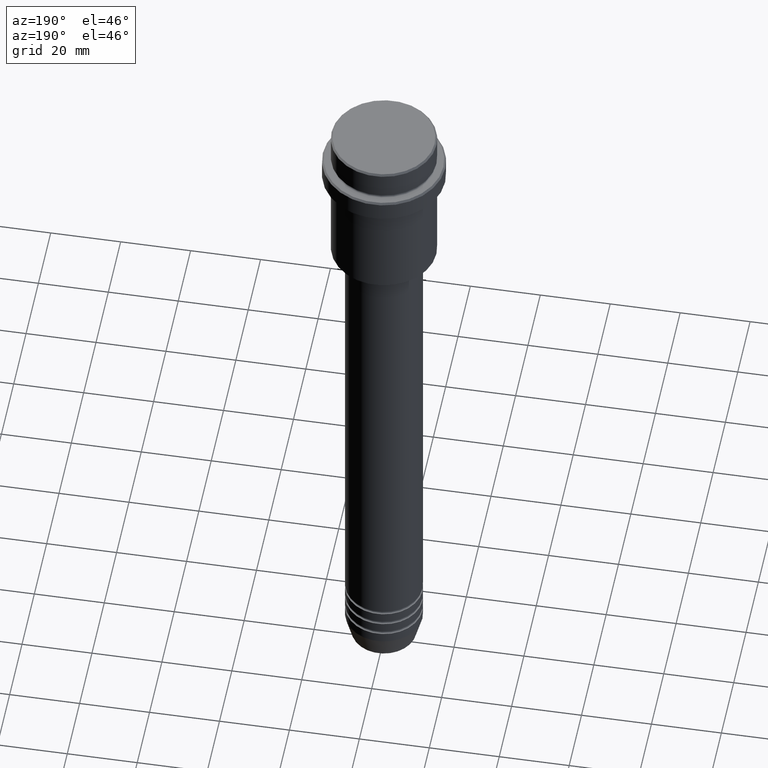
[diagram: clean part render]
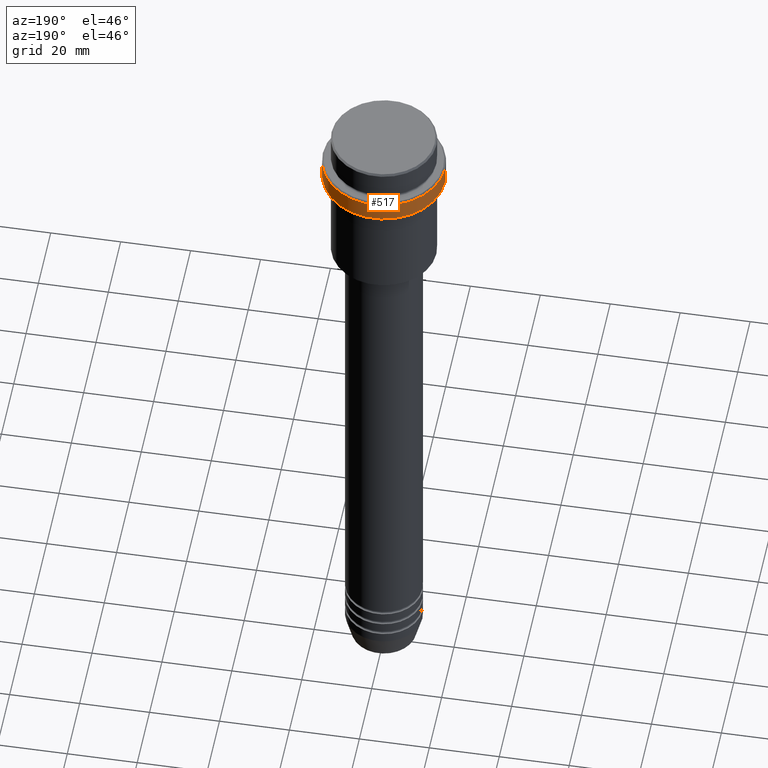
[diagram: same view with one face highlighted and labeled with its STEP entity id]
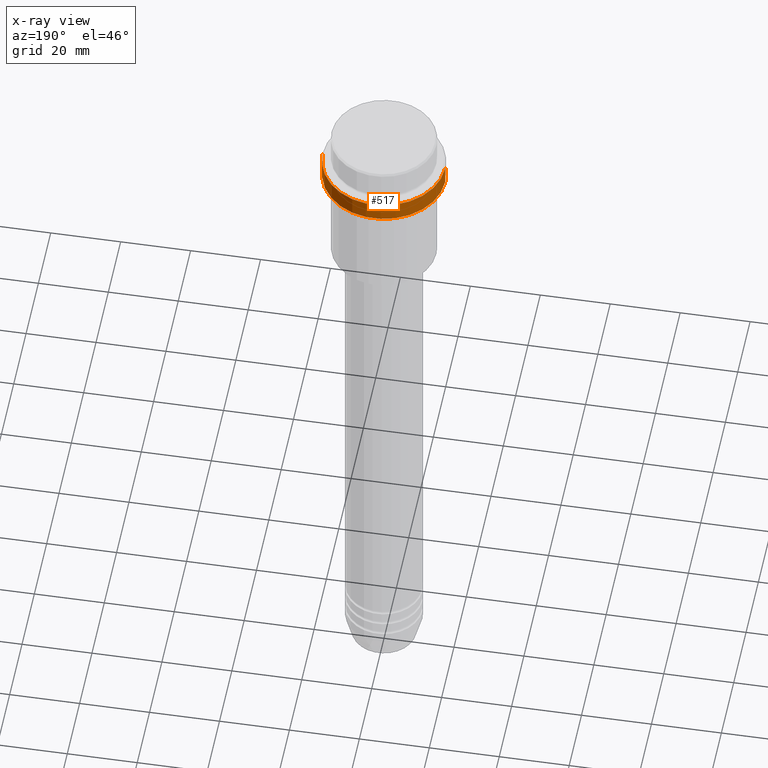
[diagram: x-ray of the same camera — body ghosted, the highlighted face saturated]
A machine part, auxiliary view. The second image highlights one B-rep face of the part: STEP entity #517.
The next image is the same camera in x-ray: the body ghosted, the highlighted face saturated — about 0% of this face is hidden behind the body in this view.
In plain terms, the highlighted cylindrical surface (partial cylindrical patch) has radius 17.5 mm, axis along (-0, -0, 1).
Its self-contained STEP definition (entity closure, byte-faithful):
#26 = CIRCLE ( 'NONE', #277, 17.50000000000000000 ) ;
#66 = VERTEX_POINT ( 'NONE', #273 ) ;
#67 = CARTESIAN_POINT ( 'NONE',  ( 0.000000000000000000, 0.000000000000000000, -15.00000000000000178 ) ) ;
#92 = CARTESIAN_POINT ( 'NONE',  ( 0.000000000000000000, 0.000000000000000000, 0.000000000000000000 ) ) ;
#101 = ORIENTED_EDGE ( 'NONE', *, *, #1100, .F. ) ;
#106 = EDGE_CURVE ( 'NONE', #931, #66, #236, .T. ) ;
#108 = LINE ( 'NONE', #972, #1280 ) ;
#155 = DIRECTION ( 'NONE',  ( 0.000000000000000000, 0.000000000000000000, -1.000000000000000000 ) ) ;
#158 = VECTOR ( 'NONE', #1177, 1000.000000000000000 ) ;
#236 = LINE ( 'NONE', #739, #158 ) ;
#273 = CARTESIAN_POINT ( 'NONE',  ( -17.50000000000000000, 2.143131898507868248E-15, -9.500000000000001776 ) ) ;
#277 = AXIS2_PLACEMENT_3D ( 'NONE', #67, #295, #1045 ) ;
#295 = DIRECTION ( 'NONE',  ( -0.000000000000000000, -0.000000000000000000, 1.000000000000000000 ) ) ;
#415 = EDGE_CURVE ( 'NONE', #66, #1288, #452, .T. ) ;
#449 = ORIENTED_EDGE ( 'NONE', *, *, #106, .T. ) ;
#452 = CIRCLE ( 'NONE', #772, 17.50000000000000000 ) ;
#517 = ADVANCED_FACE ( 'NONE', ( #1169 ), #1276, .T. ) ;
#579 = CARTESIAN_POINT ( 'NONE',  ( 0.000000000000000000, 0.000000000000000000, -9.500000000000001776 ) ) ;
#586 = DIRECTION ( 'NONE',  ( 1.000000000000000000, 0.000000000000000000, 0.000000000000000000 ) ) ;
#737 = DIRECTION ( 'NONE',  ( -0.000000000000000000, -0.000000000000000000, 1.000000000000000000 ) ) ;
#739 = CARTESIAN_POINT ( 'NONE',  ( -17.50000000000000000, 2.143131898507868248E-15, 0.000000000000000000 ) ) ;
#748 = DIRECTION ( 'NONE',  ( -0.000000000000000000, -0.000000000000000000, 1.000000000000000000 ) ) ;
#772 = AXIS2_PLACEMENT_3D ( 'NONE', #579, #155, #586 ) ;
#854 = CARTESIAN_POINT ( 'NONE',  ( 17.50000000000000000, 0.000000000000000000, -15.00000000000000178 ) ) ;
#915 = AXIS2_PLACEMENT_3D ( 'NONE', #92, #737, #1401 ) ;
#927 = VERTEX_POINT ( 'NONE', #854 ) ;
#931 = VERTEX_POINT ( 'NONE', #1051 ) ;
#972 = CARTESIAN_POINT ( 'NONE',  ( 17.50000000000000000, 0.000000000000000000, 0.000000000000000000 ) ) ;
#983 = EDGE_CURVE ( 'NONE', #927, #931, #26, .T. ) ;
#1028 = EDGE_LOOP ( 'NONE', ( #1363, #449, #1131, #101 ) ) ;
#1045 = DIRECTION ( 'NONE',  ( 1.000000000000000000, 0.000000000000000000, 0.000000000000000000 ) ) ;
#1051 = CARTESIAN_POINT ( 'NONE',  ( -17.50000000000000000, 2.143131898507868248E-15, -15.00000000000000178 ) ) ;
#1100 = EDGE_CURVE ( 'NONE', #927, #1288, #108, .T. ) ;
#1131 = ORIENTED_EDGE ( 'NONE', *, *, #415, .T. ) ;
#1169 = FACE_OUTER_BOUND ( 'NONE', #1028, .T. ) ;
#1177 = DIRECTION ( 'NONE',  ( -0.000000000000000000, -0.000000000000000000, 1.000000000000000000 ) ) ;
#1276 = CYLINDRICAL_SURFACE ( 'NONE', #915, 17.50000000000000000 ) ;
#1280 = VECTOR ( 'NONE', #748, 1000.000000000000000 ) ;
#1288 = VERTEX_POINT ( 'NONE', #1338 ) ;
#1338 = CARTESIAN_POINT ( 'NONE',  ( 17.50000000000000000, 0.000000000000000000, -9.500000000000001776 ) ) ;
#1363 = ORIENTED_EDGE ( 'NONE', *, *, #983, .T. ) ;
#1401 = DIRECTION ( 'NONE',  ( 1.000000000000000000, 0.000000000000000000, 0.000000000000000000 ) ) ;